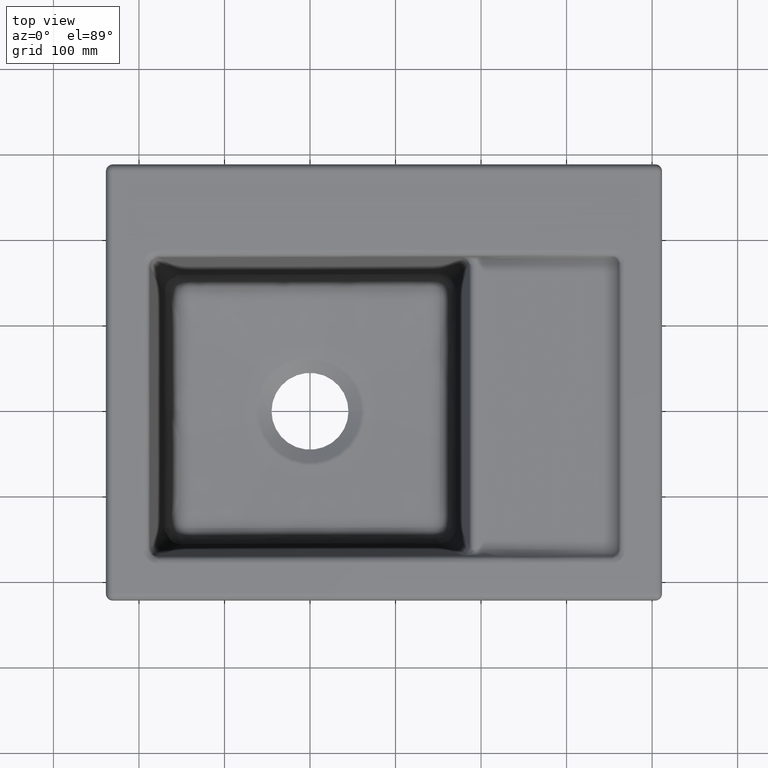
[diagram: clean part render]
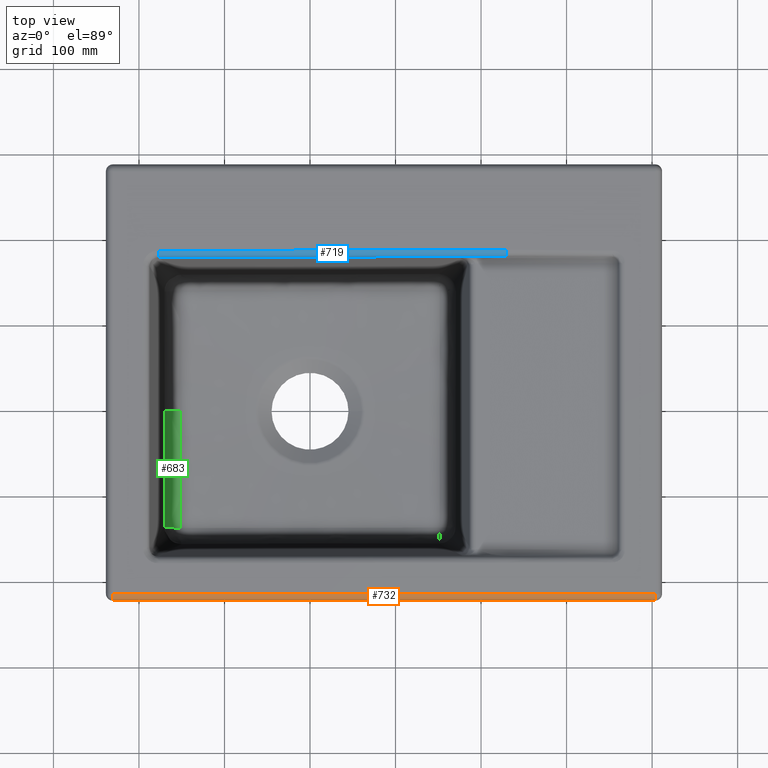
[diagram: same view with three faces highlighted in distinct colors, each labeled with its STEP entity id]
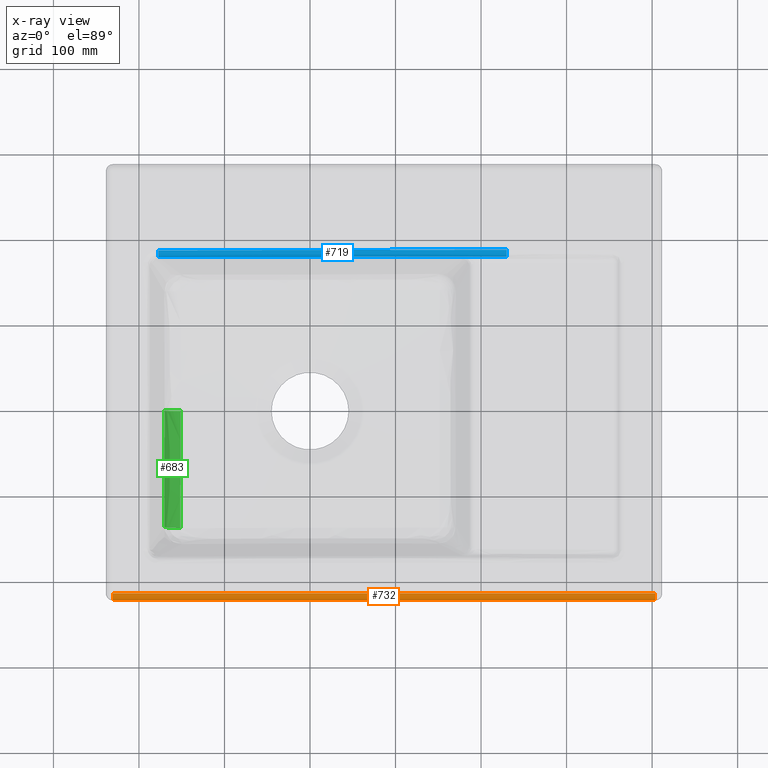
[diagram: x-ray of the same camera — body ghosted, the three highlighted faces saturated]
A machine part, top view with three faces highlighted in distinct colors.
The next image is the same camera in x-ray (body ghosted, the three faces saturated) — at least one of them is partly hidden behind the body in this view.
Their STEP definitions:

[orange] entity #732 — the highlighted cylindrical surface (edge-blend (fillet) strip) has radius 8 mm, axis along (1, 0, -0).
#207=LINE('',#6017,#285);
#219=LINE('',#6212,#297);
#285=VECTOR('',#4222,1.);
#297=VECTOR('',#4242,1.);
#375=CYLINDRICAL_SURFACE('',#4000,7.99999999999583);
#463=CIRCLE('',#3994,8.);
#466=CIRCLE('',#3999,8.);
#732=ADVANCED_FACE('',(#1021),#375,.T.);
#1021=FACE_OUTER_BOUND('',#1290,.T.);
#1290=EDGE_LOOP('',(#2027,#2028,#2029,#2030));
#2027=ORIENTED_EDGE('',*,*,#3375,.T.);
#2028=ORIENTED_EDGE('',*,*,#3040,.F.);
#2029=ORIENTED_EDGE('',*,*,#3378,.F.);
#2030=ORIENTED_EDGE('',*,*,#3023,.F.);
#2675=VERTEX_POINT('',#6016);
#2676=VERTEX_POINT('',#6018);
#2691=VERTEX_POINT('',#6213);
#2692=VERTEX_POINT('',#6214);
#3023=EDGE_CURVE('',#2675,#2676,#207,.T.);
#3040=EDGE_CURVE('',#2691,#2692,#219,.T.);
#3375=EDGE_CURVE('',#2675,#2692,#463,.T.);
#3378=EDGE_CURVE('',#2676,#2691,#466,.T.);
#3994=AXIS2_PLACEMENT_3D('',#14998,#4443,#4444);
#3999=AXIS2_PLACEMENT_3D('',#15003,#4453,#4454);
#4000=AXIS2_PLACEMENT_3D('',#15004,#4455,#4456);
#4222=DIRECTION('',(-1.,0.,0.));
#4242=DIRECTION('',(1.,0.,0.));
#4443=DIRECTION('',(-1.,1.3954230542783E-14,0.));
#4444=DIRECTION('',(1.38777878078145E-14,1.,0.));
#4453=DIRECTION('',(-1.,2.79084610855662E-14,0.));
#4454=DIRECTION('',(2.77555756156289E-14,1.,0.));
#4455=DIRECTION('',(1.,7.70642240874991E-15,-8.55884917171843E-15));
#4456=DIRECTION('',(-6.93889390391085E-15,0.,-0.999999999999998));
#6016=CARTESIAN_POINT('',(403.406744097844,-224.738110436845,212.836227706591));
#6017=CARTESIAN_POINT('',(86.5216156341337,-224.738110436848,212.836227706562));
#6018=CARTESIAN_POINT('',(-230.363512829584,-224.738110436848,212.836227706563));
#6212=CARTESIAN_POINT('',(86.5216156341318,-216.781935273902,220.000000000421));
#6213=CARTESIAN_POINT('',(-230.363512829581,-216.781935273902,220.000000000421));
#6214=CARTESIAN_POINT('',(403.406744097847,-216.7819352739,220.000000000421));
#14998=CARTESIAN_POINT('',(403.406744097844,-216.7819352739,212.000000000421));
#15003=CARTESIAN_POINT('',(-230.363512829581,-216.781935273902,212.000000000421));
#15004=CARTESIAN_POINT('',(403.406744097846,-216.781935273903,212.000000000422));

[blue] entity #719 — the highlighted face is a freeform B-spline surface patch.
#107=(
BOUNDED_SURFACE()
B_SPLINE_SURFACE(3,2,((#14834,#14835,#14836),(#14837,#14838,#14839),(#14840,
#14841,#14842),(#14843,#14844,#14845)),.UNSPECIFIED.,.F.,.F.,.F.)
B_SPLINE_SURFACE_WITH_KNOTS((4,4),(3,3),(0.,1.),(0.,1.),.UNSPECIFIED.)
GEOMETRIC_REPRESENTATION_ITEM()
RATIONAL_B_SPLINE_SURFACE(((1.,0.743144825477393,1.),(1.,0.743144825477393,
1.),(1.,0.743144825477516,1.),(1.,0.743144825477516,1.)))
REPRESENTATION_ITEM('')
SURFACE()
);
#455=CIRCLE('',#3978,8.);
#719=ADVANCED_FACE('',(#1008),#107,.T.);
#1008=FACE_OUTER_BOUND('',#1277,.T.);
#1277=EDGE_LOOP('',(#1974,#1975,#1976,#1977));
#1974=ORIENTED_EDGE('',*,*,#3359,.T.);
#1975=ORIENTED_EDGE('',*,*,#3047,.F.);
#1976=ORIENTED_EDGE('',*,*,#3361,.F.);
#1977=ORIENTED_EDGE('',*,*,#3093,.F.);
#2690=VERTEX_POINT('',#6073);
#2698=VERTEX_POINT('',#6242);
#2699=VERTEX_POINT('',#6247);
#2739=VERTEX_POINT('',#7624);
#3047=EDGE_CURVE('',#2698,#2699,#3613,.T.);
#3093=EDGE_CURVE('',#2739,#2690,#3649,.T.);
#3359=EDGE_CURVE('',#2739,#2699,#455,.T.);
#3361=EDGE_CURVE('',#2690,#2698,#3853,.T.);
#3613=B_SPLINE_CURVE_WITH_KNOTS('',3,(#6243,#6244,#6245,#6246),
 .UNSPECIFIED.,.F.,.F.,(4,4),(0.,1.),.UNSPECIFIED.);
#3649=B_SPLINE_CURVE_WITH_KNOTS('',3,(#7625,#7626,#7627,#7628),
 .UNSPECIFIED.,.F.,.F.,(4,4),(0.,1.),.UNSPECIFIED.);
#3853=B_SPLINE_CURVE_WITH_KNOTS('',3,(#14828,#14829,#14830,#14831,#14832,
#14833),.UNSPECIFIED.,.F.,.F.,(4,2,4),(0.,0.5,1.),.UNSPECIFIED.);
#3978=AXIS2_PLACEMENT_3D('',#14796,#4411,#4412);
#4411=DIRECTION('',(-0.999999254394416,0.00122115134667192,0.));
#4412=DIRECTION('',(0.00122115134667047,0.999999254394417,0.));
#6073=CARTESIAN_POINT('',(-177.332055930706,176.39464502129,212.836227902825));
#6242=CARTESIAN_POINT('',(-177.372725733056,184.350716218279,220.000000000421));
#6243=CARTESIAN_POINT('',(-177.372725733056,184.350716218278,220.000000000421));
#6244=CARTESIAN_POINT('',(-41.5662809077645,185.044955319376,220.000000000421));
#6245=CARTESIAN_POINT('',(94.2410005152157,185.309153675001,220.000000000421));
#6246=CARTESIAN_POINT('',(230.049118535886,185.143311285139,220.000000000421));
#6247=CARTESIAN_POINT('',(230.049118535886,185.143311285139,220.000000000421));
#7624=CARTESIAN_POINT('',(230.039402841871,177.187142054349,212.836227706562));
#7625=CARTESIAN_POINT('',(230.039402841871,177.187142054336,212.836227706562));
#7626=CARTESIAN_POINT('',(94.2484166868636,177.352963523582,212.836227706562));
#7627=CARTESIAN_POINT('',(-41.5427439630702,177.088796526418,212.836227706563));
#7628=CARTESIAN_POINT('',(-177.332057133741,176.394644996342,212.836227706563));
#14796=CARTESIAN_POINT('',(230.049118535886,185.143311285145,212.000000000421));
#14828=CARTESIAN_POINT('',(-177.332054658018,176.394645004854,212.836227701846));
#14829=CARTESIAN_POINT('',(-177.333008102547,176.581157750919,214.610801139567));
#14830=CARTESIAN_POINT('',(-177.33758423007,177.476339468305,216.575264337476));
#14831=CARTESIAN_POINT('',(-177.353138901659,180.519143139169,219.315052867832));
#14832=CARTESIAN_POINT('',(-177.363604339255,182.566391244357,220.000000000421));
#14833=CARTESIAN_POINT('',(-177.372725725951,184.350716214666,220.000000000421));
#14834=CARTESIAN_POINT('',(-177.332057133741,176.394644996344,212.836227706562));
#14835=CARTESIAN_POINT('',(-177.335906108019,177.147577967042,220.000000000421));
#14836=CARTESIAN_POINT('',(-177.372728368272,184.350716204809,220.000000000421));
#14837=CARTESIAN_POINT('',(-41.5422313657831,177.088799061148,212.836226891607));
#14838=CARTESIAN_POINT('',(-41.5444906798984,177.841730139614,220.000001412076));
#14839=CARTESIAN_POINT('',(-41.566106878309,185.044947292354,220.000000000421));
#14840=CARTESIAN_POINT('',(94.2482553326906,177.352963677033,212.836227291988));
#14841=CARTESIAN_POINT('',(94.2475851460532,178.1059025988,220.000001436572));
#14842=CARTESIAN_POINT('',(94.2411751683205,185.309149447277,220.000000000421));
#14843=CARTESIAN_POINT('',(230.039402841871,177.187142054322,212.836227706562));
#14844=CARTESIAN_POINT('',(230.040322298996,177.940084301487,220.000000000419));
#14845=CARTESIAN_POINT('',(230.049118535886,185.143311285097,220.000000000421));

[green] entity #683 — the highlighted face is a freeform B-spline surface patch.
#81=(
BOUNDED_SURFACE()
B_SPLINE_SURFACE(3,2,((#9900,#9901,#9902),(#9903,#9904,#9905),(#9906,#9907,
#9908),(#9909,#9910,#9911)),.UNSPECIFIED.,.F.,.F.,.F.)
B_SPLINE_SURFACE_WITH_KNOTS((4,4),(3,3),(0.,1.),(0.,1.),.UNSPECIFIED.)
GEOMETRIC_REPRESENTATION_ITEM()
RATIONAL_B_SPLINE_SURFACE(((1.,0.758723604461211,1.),(1.,0.761415480119088,
1.),(1.,0.765075588761648,1.),(1.,0.765075190599523,1.)))
REPRESENTATION_ITEM('')
SURFACE()
);
#683=ADVANCED_FACE('',(#972),#81,.T.);
#972=FACE_OUTER_BOUND('',#1241,.T.);
#1241=EDGE_LOOP('',(#1812,#1813,#1814,#1815));
#1812=ORIENTED_EDGE('',*,*,#3295,.T.);
#1813=ORIENTED_EDGE('',*,*,#3076,.F.);
#1814=ORIENTED_EDGE('',*,*,#3298,.F.);
#1815=ORIENTED_EDGE('',*,*,#3012,.F.);
#2661=VERTEX_POINT('',#5320);
#2668=VERTEX_POINT('',#5586);
#2725=VERTEX_POINT('',#7418);
#2726=VERTEX_POINT('',#7441);
#3012=EDGE_CURVE('',#2668,#2661,#3598,.T.);
#3076=EDGE_CURVE('',#2725,#2726,#3638,.T.);
#3295=EDGE_CURVE('',#2668,#2726,#3804,.T.);
#3298=EDGE_CURVE('',#2661,#2725,#3806,.T.);
#3598=B_SPLINE_CURVE_WITH_KNOTS('',3,(#5587,#5588,#5589,#5590,#5591,#5592,
#5593,#5594,#5595,#5596,#5597,#5598,#5599,#5600,#5601,#5602,#5603,#5604,
#5605,#5606,#5607,#5608,#5609,#5610,#5611,#5612,#5613,#5614,#5615,#5616,
#5617,#5618,#5619,#5620,#5621),.UNSPECIFIED.,.F.,.F.,(4,2,2,2,1,1,2,2,2,
2,1,1,2,2,2,2,1,2,2,4),(0.,0.0624999999999946,0.0937499999999922,0.109374999999991,
0.117187499999991,0.12109374999999,0.12304687499999,0.124999999999991,0.187499999999993,
0.218749999999995,0.234374999999995,0.242187499999996,0.246093749999996,
0.249999999999996,0.374999999999996,0.437499999999996,0.468749999999996,
0.484374999999997,0.499999999999997,1.),.UNSPECIFIED.);
#3638=B_SPLINE_CURVE_WITH_KNOTS('',3,(#7419,#7420,#7421,#7422,#7423,#7424,
#7425,#7426,#7427,#7428,#7429,#7430,#7431,#7432,#7433,#7434,#7435,#7436,
#7437,#7438,#7439,#7440),.UNSPECIFIED.,.F.,.F.,(4,2,2,2,2,2,2,2,2,2,4),
(0.,0.125000000000001,0.187500000000001,0.218750000000001,0.250000000000002,
0.375000000000002,0.437500000000002,0.468750000000003,0.484375000000003,
0.500000000000002,1.),.UNSPECIFIED.);
#3804=B_SPLINE_CURVE_WITH_KNOTS('',3,(#9753,#9754,#9755,#9756,#9757,#9758,
#9759,#9760,#9761,#9762),.UNSPECIFIED.,.F.,.F.,(4,2,2,2,4),(0.,0.25,0.5,
0.75,1.),.UNSPECIFIED.);
#3806=B_SPLINE_CURVE_WITH_KNOTS('',3,(#9890,#9891,#9892,#9893,#9894,#9895,
#9896,#9897,#9898,#9899),.UNSPECIFIED.,.F.,.F.,(4,2,2,2,4),(0.,0.25,0.5,
0.75,1.),.UNSPECIFIED.);
#5320=CARTESIAN_POINT('',(-169.937694059036,-0.0047459678104341,44.152226689807));
#5586=CARTESIAN_POINT('',(-170.490181876787,-136.050632326341,47.877614365792));
#5587=CARTESIAN_POINT('',(-170.490207741546,-136.050618788649,47.877895331628));
#5588=CARTESIAN_POINT('',(-170.479728116831,-134.553106733417,47.8067058857602));
#5589=CARTESIAN_POINT('',(-170.464287933531,-132.387173717865,47.7009186006874));
#5590=CARTESIAN_POINT('',(-170.435147146731,-128.137313031727,47.5038541785693));
#5591=CARTESIAN_POINT('',(-170.424437169267,-126.553878253764,47.4317604126617));
#5592=CARTESIAN_POINT('',(-170.406950597637,-123.928830964585,47.3144310144697));
#5593=CARTESIAN_POINT('',(-170.400883422495,-123.012166872605,47.2737743546588));
#5594=CARTESIAN_POINT('',(-170.391417220946,-121.574747093811,47.2103339524392));
#5595=CARTESIAN_POINT('',(-170.386592544689,-120.840431380081,47.177997544158));
#5596=CARTESIAN_POINT('',(-170.380799190719,-119.956431133095,47.1391359126825));
#5597=CARTESIAN_POINT('',(-170.378280413107,-119.571725493045,47.122229363898));
#5598=CARTESIAN_POINT('',(-170.376593169672,-119.313955570476,47.1109014550104));
#5599=CARTESIAN_POINT('',(-170.375552712083,-119.154950550625,47.1039139074789));
#5600=CARTESIAN_POINT('',(-170.353808552129,-115.831386150571,46.9578499894986));
#5601=CARTESIAN_POINT('',(-170.33451754285,-112.803684050113,46.8284906693816));
#5602=CARTESIAN_POINT('',(-170.308087354969,-108.5540889993,46.6510401606039));
#5603=CARTESIAN_POINT('',(-170.299694672962,-107.186218116597,46.594657587067));
#5604=CARTESIAN_POINT('',(-170.287709643768,-105.207317335678,46.5140627400118));
#5605=CARTESIAN_POINT('',(-170.281868152894,-104.236093433401,46.4747607239483));
#5606=CARTESIAN_POINT('',(-170.275312808443,-103.134877581399,46.4306190968041));
#5607=CARTESIAN_POINT('',(-170.272558559165,-102.669757258627,46.4120648738895));
#5608=CARTESIAN_POINT('',(-170.270734604114,-102.361194471343,46.3997758750593));
#5609=CARTESIAN_POINT('',(-170.270047374353,-102.244792225423,46.3951451613229));
#5610=CARTESIAN_POINT('',(-170.233139037434,-95.9786037493686,46.1464004646912));
#5611=CARTESIAN_POINT('',(-170.201190619729,-90.1076298173585,45.9286000659254));
#5612=CARTESIAN_POINT('',(-170.158362448303,-81.606678002797,45.6345250353299));
#5613=CARTESIAN_POINT('',(-170.144937060087,-78.8239481396768,45.5419526063448));
#5614=CARTESIAN_POINT('',(-170.12600472827,-74.7259469933595,45.4110461272297));
#5615=CARTESIAN_POINT('',(-170.116840130634,-72.695970075799,45.3475816039378));
#5616=CARTESIAN_POINT('',(-170.10811586171,-70.6944769454009,45.287063549171));
#5617=CARTESIAN_POINT('',(-170.102396274053,-69.3664723306887,45.2473692743314));
#5618=CARTESIAN_POINT('',(-170.099797215791,-68.7561851226054,45.2293233214277));
#5619=CARTESIAN_POINT('',(-170.001580308551,-45.3844634675229,44.5470975015348));
#5620=CARTESIAN_POINT('',(-169.945177620368,-22.7255134252918,44.1537116317598));
#5621=CARTESIAN_POINT('',(-169.937694103341,-0.00474596883835032,44.1522271239144));
#7418=CARTESIAN_POINT('',(-151.43617797028,-0.0112704632342651,26.231574719266));
#7419=CARTESIAN_POINT('',(-151.436177971106,-0.0112704632339314,26.2315747193238));
#7420=CARTESIAN_POINT('',(-151.438023427221,-5.74480753836831,26.2317336047887));
#7421=CARTESIAN_POINT('',(-151.435182883591,-11.4200555669944,26.2542162741259));
#7422=CARTESIAN_POINT('',(-151.438536406007,-19.9522813205908,26.3214259539403));
#7423=CARTESIAN_POINT('',(-151.440607322338,-22.7995560007439,26.3494101265131));
#7424=CARTESIAN_POINT('',(-151.44426994577,-27.0881389112823,26.3997578043246));
#7425=CARTESIAN_POINT('',(-151.445565518469,-28.5206070955687,26.4179356000871));
#7426=CARTESIAN_POINT('',(-151.447951017971,-31.3935057961813,26.4570816645962));
#7427=CARTESIAN_POINT('',(-151.449057185734,-32.8658817580897,26.4785441869558));
#7428=CARTESIAN_POINT('',(-151.452688566433,-39.9332917788079,26.5878904450834));
#7429=CARTESIAN_POINT('',(-151.45375611617,-45.581360382962,26.6956124487447));
#7430=CARTESIAN_POINT('',(-151.460356708182,-54.1222250559525,26.8875629499754));
#7431=CARTESIAN_POINT('',(-151.46320716916,-56.98053266335,26.9566076996755));
#7432=CARTESIAN_POINT('',(-151.468030339765,-61.2936621669159,27.0677666981603));
#7433=CARTESIAN_POINT('',(-151.469720950337,-62.735642241363,27.1060850099777));
#7434=CARTESIAN_POINT('',(-151.472259947323,-64.906026102068,27.1654604461875));
#7435=CARTESIAN_POINT('',(-151.473106362932,-65.6307225094452,27.1855685863381));
#7436=CARTESIAN_POINT('',(-151.474774292584,-67.0827475371265,27.2264175228004));
#7437=CARTESIAN_POINT('',(-151.475657158724,-67.8663175084466,27.2487834634077));
#7438=CARTESIAN_POINT('',(-151.499868592093,-90.0582339384738,27.8900388066006));
#7439=CARTESIAN_POINT('',(-151.538948967448,-112.4944756998,28.7783040110243));
#7440=CARTESIAN_POINT('',(-151.626222525678,-137.026464822088,29.9330110567755));
#7441=CARTESIAN_POINT('',(-151.626222525678,-137.026464822088,29.9330110567755));
#9753=CARTESIAN_POINT('',(-170.490172584614,-136.049194268949,47.8775463209713));
#9754=CARTESIAN_POINT('',(-170.272786096317,-136.152676709565,45.7197690424888));
#9755=CARTESIAN_POINT('',(-169.680358340187,-136.263588998136,43.4600841859138));
#9756=CARTESIAN_POINT('',(-167.631940423052,-136.481393386798,39.1531641095749));
#9757=CARTESIAN_POINT('',(-166.173356300597,-136.587853909884,37.1154443122301));
#9758=CARTESIAN_POINT('',(-162.598152916164,-136.773487099779,33.714517225495));
#9759=CARTESIAN_POINT('',(-160.489392362221,-136.852251734443,32.3587853331823));
#9760=CARTESIAN_POINT('',(-156.082837718332,-136.969605576141,30.5253759014279));
#9761=CARTESIAN_POINT('',(-153.794431405018,-137.00827361336,30.0446454900921));
#9762=CARTESIAN_POINT('',(-151.626237460565,-137.028656954977,29.9331149105932));
#9890=CARTESIAN_POINT('',(-169.93769367607,-0.00474596898538067,44.1522267288924));
#9891=CARTESIAN_POINT('',(-169.719758239398,-0.00488634754693398,42.0168493166952));
#9892=CARTESIAN_POINT('',(-169.135543439286,-0.00514187619112926,39.7843678144512));
#9893=CARTESIAN_POINT('',(-167.128277515902,-0.00591108726087614,35.526078401281));
#9894=CARTESIAN_POINT('',(-165.702868875103,-0.00642538755297438,33.5091631179834));
#9895=CARTESIAN_POINT('',(-162.208869683388,-0.0076455679671496,30.124862301856));
#9896=CARTESIAN_POINT('',(-160.147525696062,-0.00834910389620419,28.7644958086589));
#9897=CARTESIAN_POINT('',(-155.827393269513,-0.00980655594689736,26.8940428628161));
#9898=CARTESIAN_POINT('',(-153.577417750014,-0.0105577659419492,26.3813165053874));
#9899=CARTESIAN_POINT('',(-151.436177222144,-0.0112704634786217,26.2315865569548));
#9900=CARTESIAN_POINT('',(-151.629161524001,-137.84969948212,29.9718240260378));
#9901=CARTESIAN_POINT('',(-168.777132582158,-137.688205882205,30.8514773003868));
#9902=CARTESIAN_POINT('',(-170.495930070166,-136.86729815333,47.9167820785957));
#9903=CARTESIAN_POINT('',(-151.465223621957,-92.089979858347,27.810859473865));
#9904=CARTESIAN_POINT('',(-168.460697726981,-92.1088684068023,28.8248514116604));
#9905=CARTESIAN_POINT('',(-170.176033315796,-91.2694015727001,45.7420962715255));
#9906=CARTESIAN_POINT('',(-151.451016781259,-46.1130306090823,26.232852273824));
#9907=CARTESIAN_POINT('',(-168.245007244829,-46.0363155103731,27.4070584199023));
#9908=CARTESIAN_POINT('',(-169.952730567188,-45.6570720913668,44.1552099286913));
#9909=CARTESIAN_POINT('',(-151.436177971105,-0.0112704632342404,26.2315747193235));
#9910=CARTESIAN_POINT('',(-168.228574856385,-0.00577076661389739,27.4058134665276));
#9911=CARTESIAN_POINT('',(-169.93769410334,-0.00474596883845885,44.1522271239147));